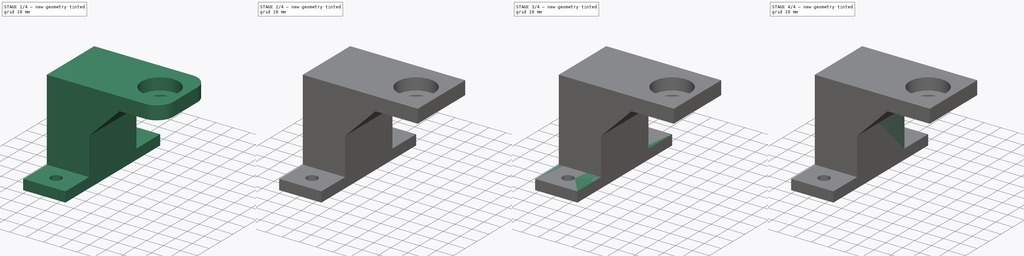
[diagram: build sequence overview — one tinted view per stage of 4, left to right]
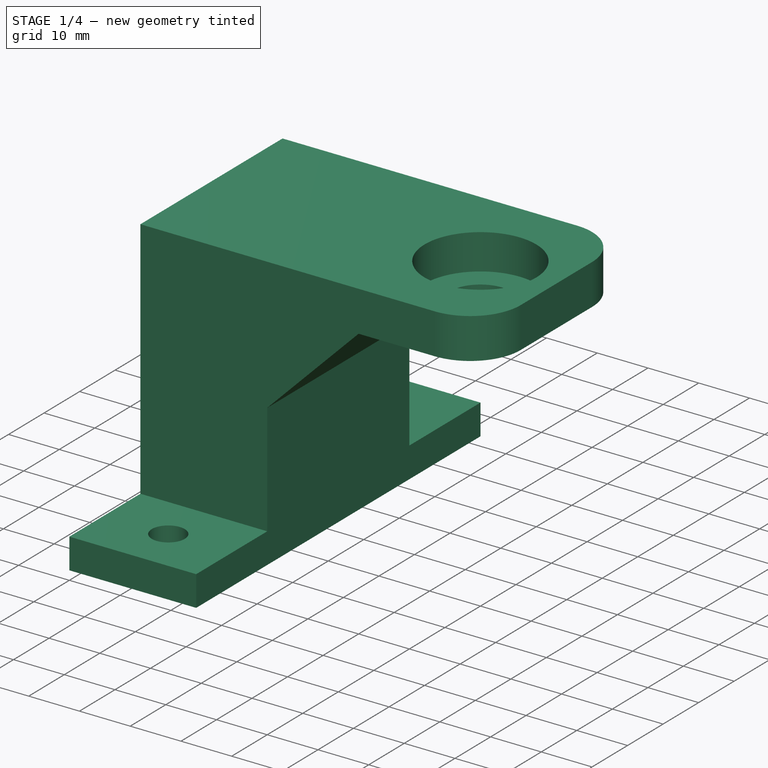
[diagram: stage 1 of 4 — iso view after this stage's code; geometry added in this stage tinted green]
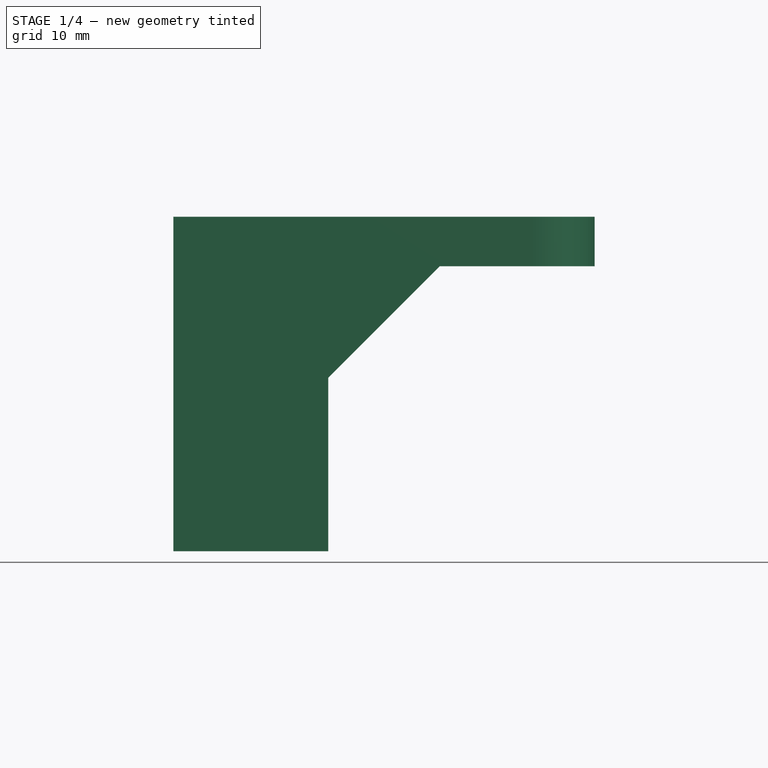
[diagram: stage 1 of 4 — front view after this stage's code; geometry added in this stage tinted green]
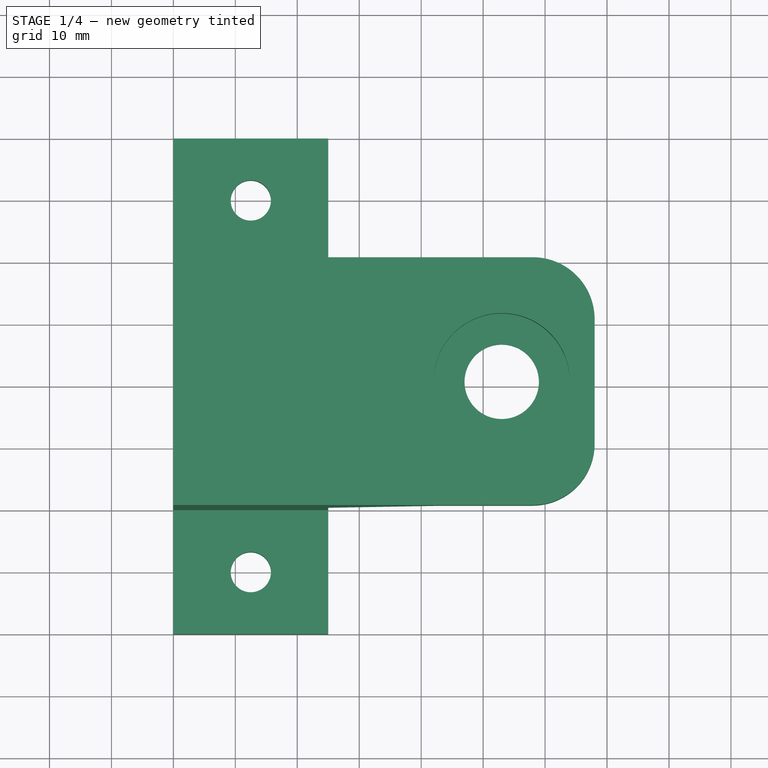
[diagram: stage 1 of 4 — top view after this stage's code; geometry added in this stage tinted green]
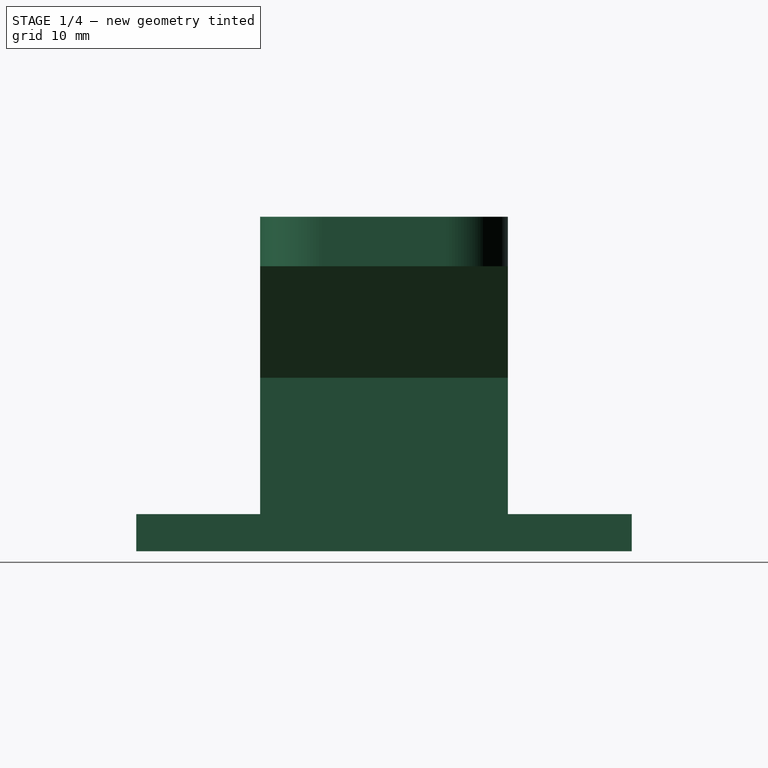
[diagram: stage 1 of 4 — right view after this stage's code; geometry added in this stage tinted green]
FCSTD DOCUMENT  (FreeCAD 0.14R3702 (Git))
Label: bottom_bearing_mount_lr
License: CC-BY 3.0
LicenseURL: http://creativecommons.org/licenses/by/3.0/
objects: Sketcher::SketchObject×4, PartDesign::Pocket×4, Part::Box×3, PartDesign::Fillet×2, Part::MultiFuse×1, Part::Feature×1, PartDesign::Chamfer×1
note: 20 computed .brp shape members not serialized (recipe doc carries the construction recipe); baked Part::Feature solids carry a one-line shape summary decoded from their .brp

FEATURE [Part::Feature] Fusion001
  shape: bbox 68 x 80 x 54 mm, 23 faces (baked)
FEATURE [PartDesign::Chamfer] Chamfer
  Base = -> Fusion001 [Edge11]
  Size = 18
FEATURE [PartDesign::Fillet] Fillet
  Base = -> Chamfer [Edge14]
  Radius = 10
FEATURE [PartDesign::Fillet] Fillet001
  Base = -> Fillet [Edge9]
  Radius = 10
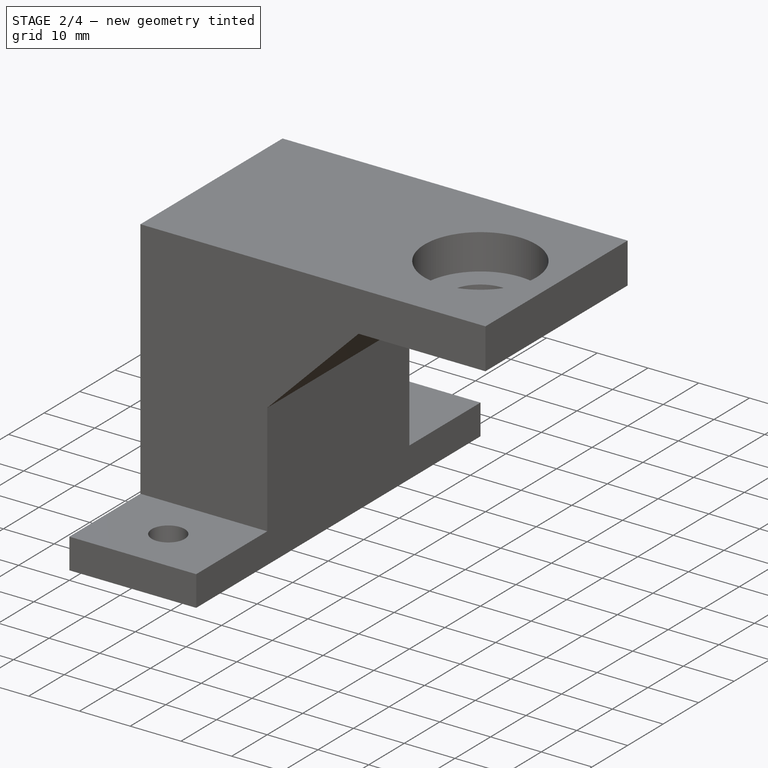
[diagram: stage 2 of 4 — iso view after this stage's code; geometry added in this stage tinted green]
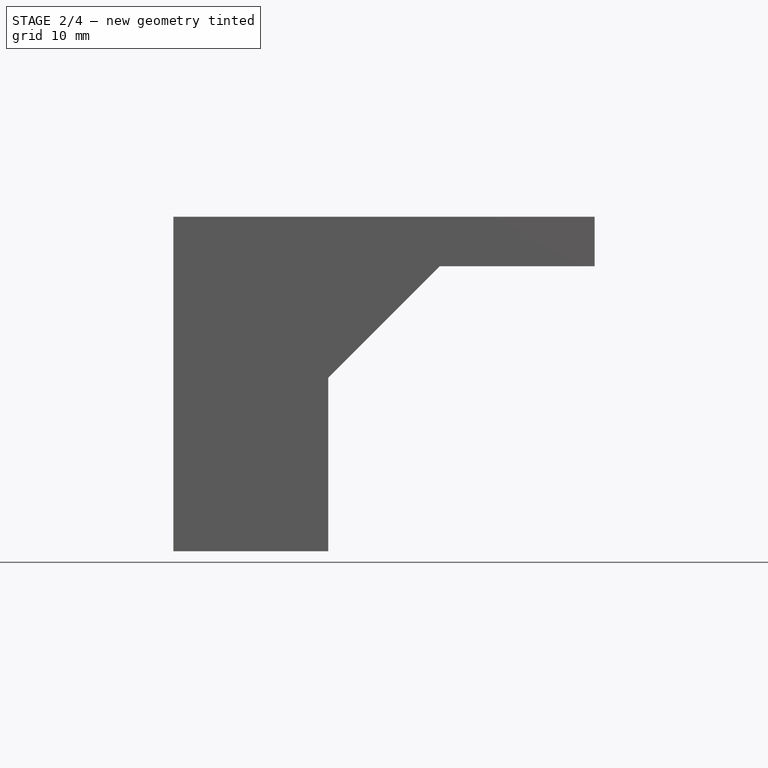
[diagram: stage 2 of 4 — front view after this stage's code; geometry added in this stage tinted green]
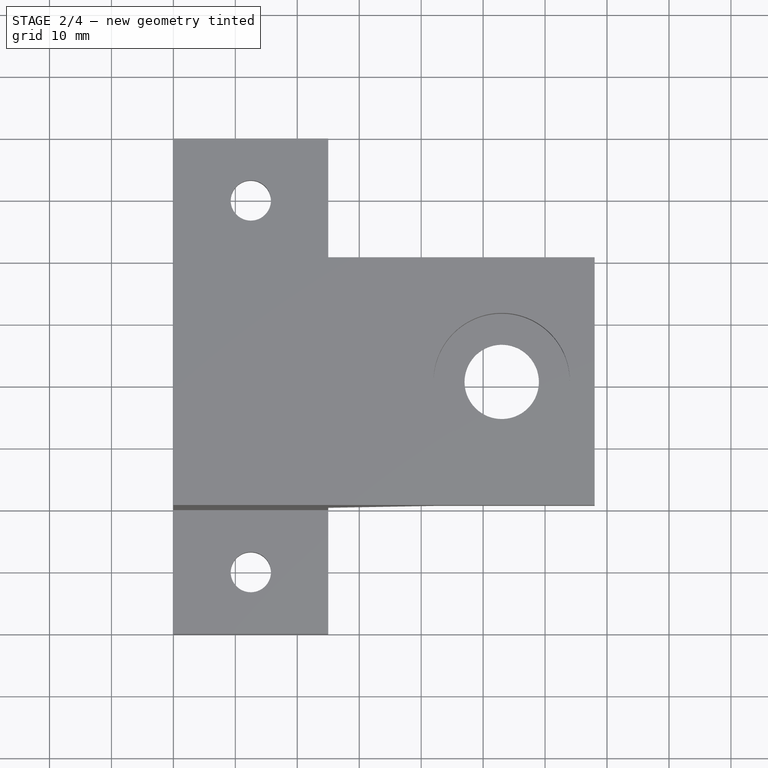
[diagram: stage 2 of 4 — top view after this stage's code; geometry added in this stage tinted green]
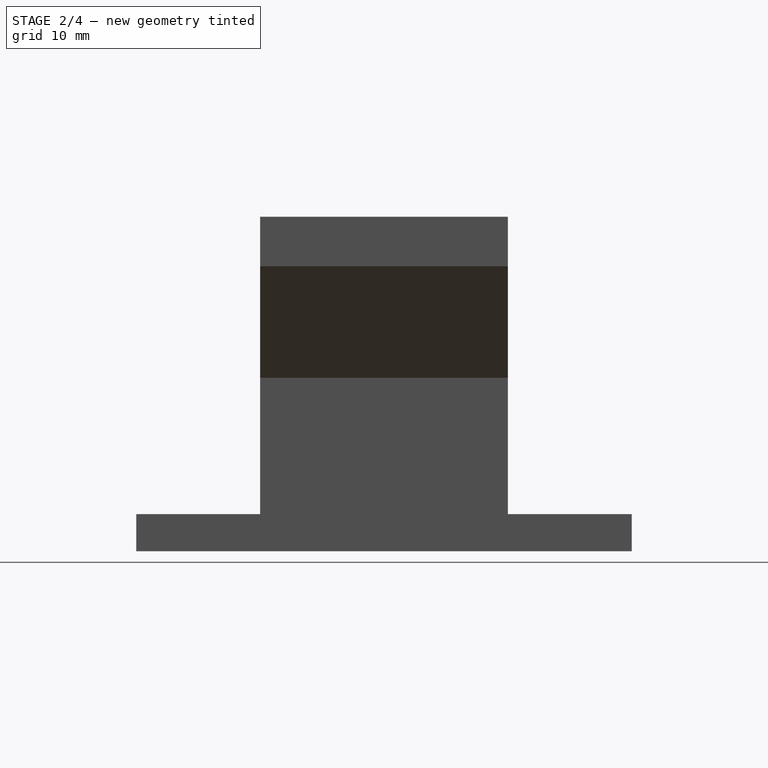
[diagram: stage 2 of 4 — right view after this stage's code; geometry added in this stage tinted green]
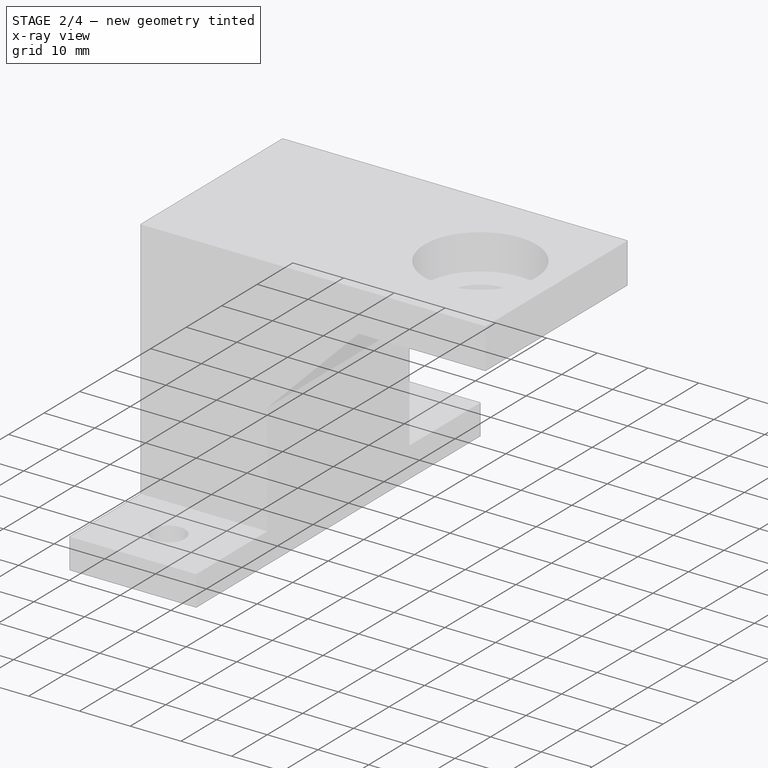
[diagram: stage 2 of 4 — x-ray composite at the iso view; earlier geometry ghosted, this stage's added geometry solid]
FEATURE [Part::Box] Box002  label="Cube002"
  Height = 8
  Length = 68
  Placement = pos=(0,20,46) rot=(0,0,1;0rad)
  Width = 40
FEATURE [Sketcher::SketchObject] Sketch002
  Placement = pos=(0,20,54) rot=(0,0,1;0rad)
  Support = -> Box002 [Face6]
  sketch-geometry (1):
    g0: Circle CenterX=53 CenterY=20 CenterZ=0 NormalX=0 NormalY=0 NormalZ=1 Radius=11
  constraints (3):
    c: DistanceX(g-1,g0) = 53
    c: DistanceY(g-1,g0) = 20
    c: Radius(g0) = 11
FEATURE [PartDesign::Pocket] Pocket002  label="bearing_hole"
  Length = 7
  Placement = pos=(0,20,46) rot=(0,0,1;0rad)
  Sketch = -> Sketch002
  Type = 0
FEATURE [Sketcher::SketchObject] Sketch003
  Placement = pos=(0,20,46) rot=(1,0,0;3.14159rad)
  Support = -> Pocket002 [Face5]
  sketch-geometry (1):
    g0: Circle CenterX=53 CenterY=-20 CenterZ=0 NormalX=0 NormalY=0 NormalZ=1 Radius=6
  constraints (3):
    c: DistanceX(g-1,g0) = 53
    c: DistanceY(g-1,g0) = -20
    c: Radius(g0) = 6
FEATURE [PartDesign::Pocket] Pocket003  label="thro_whole_pocket"
  Length = 5
  Placement = pos=(0,20,46) rot=(0,0,1;0rad)
  Sketch = -> Sketch003
  Type = 1
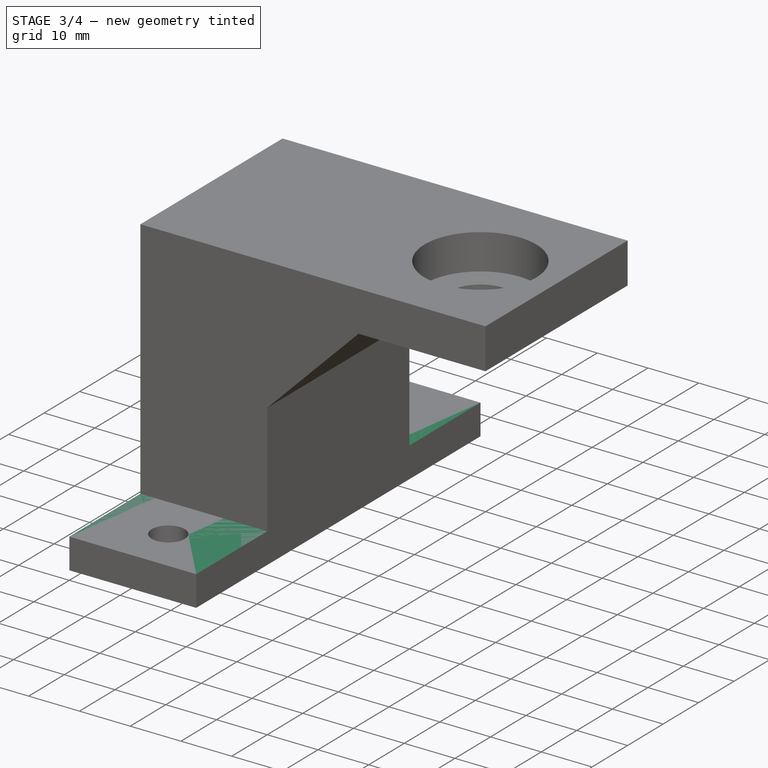
[diagram: stage 3 of 4 — iso view after this stage's code; geometry added in this stage tinted green]
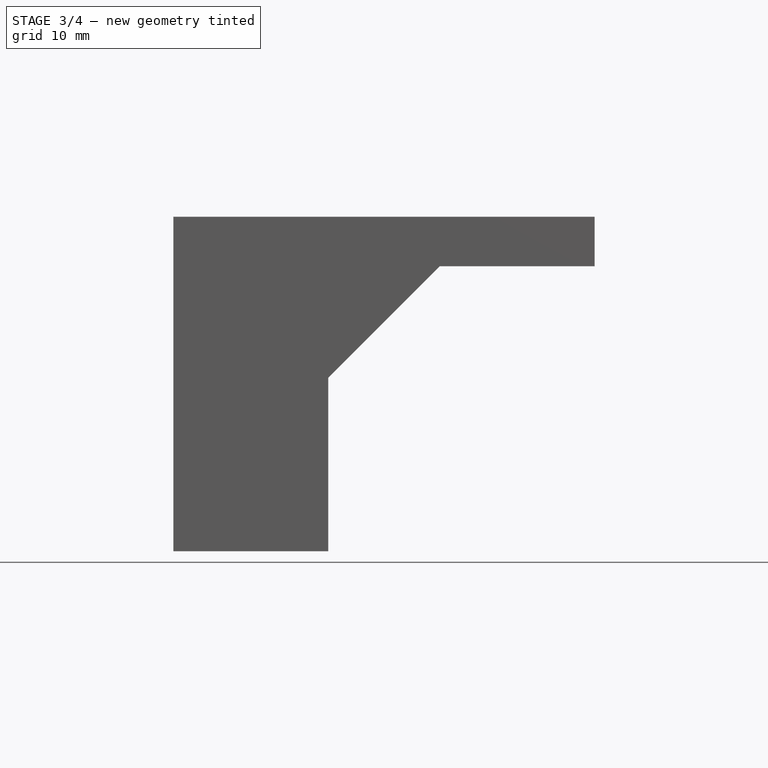
[diagram: stage 3 of 4 — front view after this stage's code; geometry added in this stage tinted green]
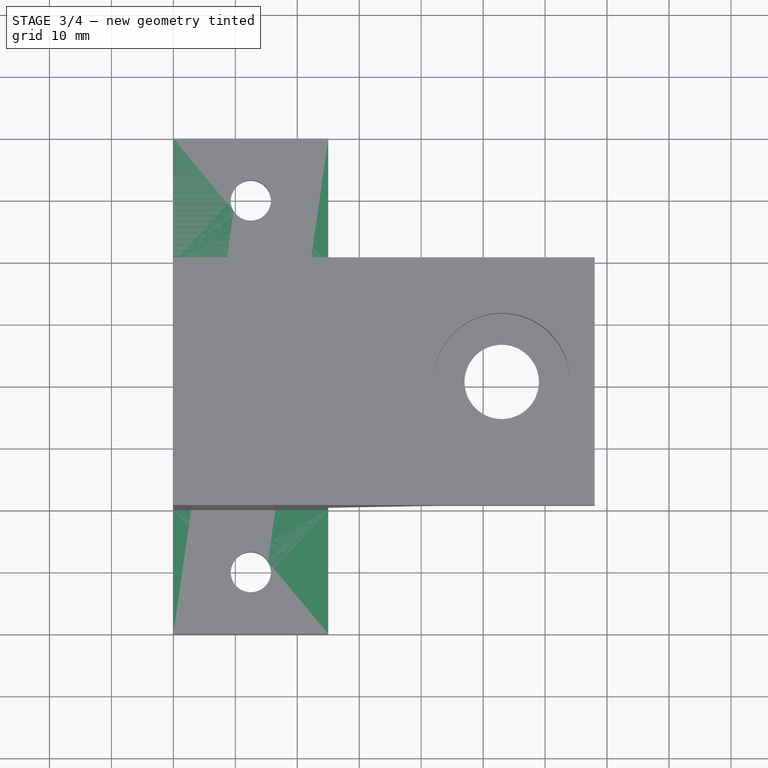
[diagram: stage 3 of 4 — top view after this stage's code; geometry added in this stage tinted green]
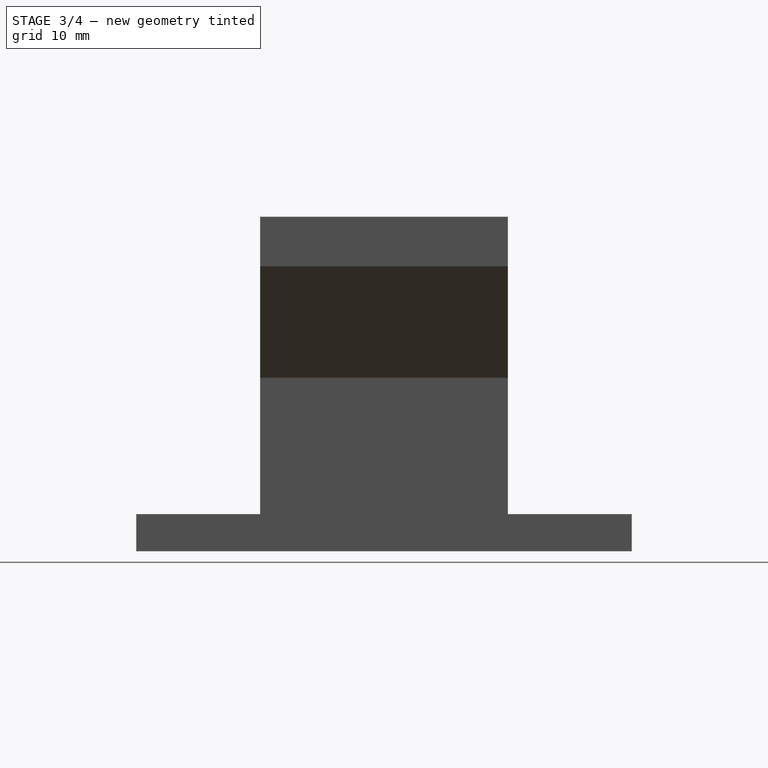
[diagram: stage 3 of 4 — right view after this stage's code; geometry added in this stage tinted green]
FEATURE [Part::Box] Box  label="Cube"
  Height = 6
  Length = 25
  Width = 80
FEATURE [Sketcher::SketchObject] Sketch001
  Placement = pos=(0,0,6) rot=(0,0,1;0rad)
  Support = -> Box [Face6]
  sketch-geometry (2):
    g0: Circle CenterX=12.5 CenterY=70 CenterZ=0 NormalX=0 NormalY=0 NormalZ=1 Radius=3.25
    g1: Circle CenterX=12.5 CenterY=10 CenterZ=0 NormalX=0 NormalY=0 NormalZ=1 Radius=3.25
  constraints (6):
    c: DistanceX(g-1,g1) = 12.5
    c: Radius(g1) = 3.25
    c: Equal(g1,g0)
    c: DistanceX(g-1,g0) = 12.5
    c: DistanceY(g-1,g1) = 10
    c: DistanceY(g-1,g0) = 70
FEATURE [PartDesign::Pocket] Pocket001  label="base_plate"
  Length = 5
  Sketch = -> Sketch001
  Type = 1
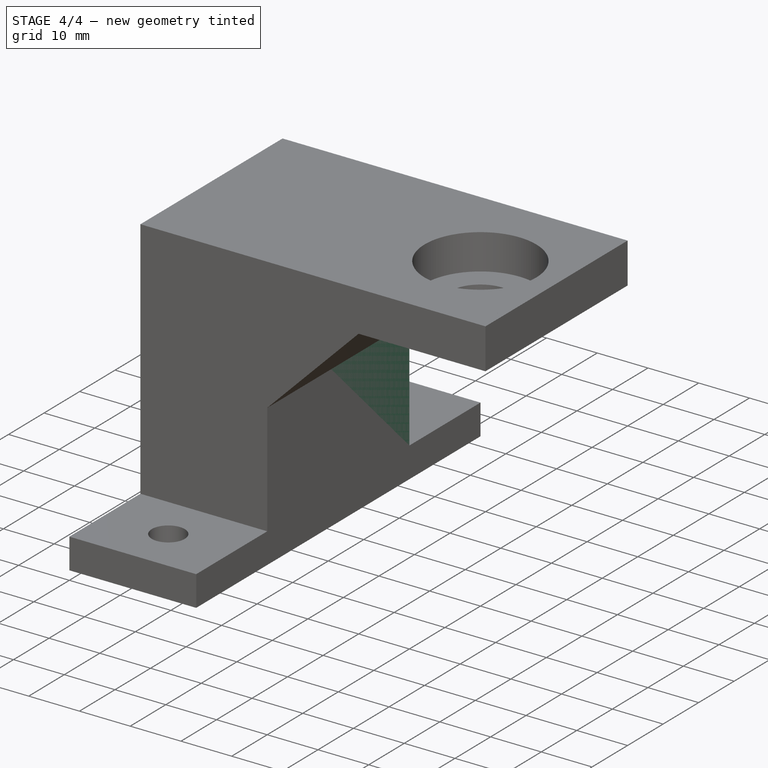
[diagram: stage 4 of 4 — iso view after this stage's code; geometry added in this stage tinted green]
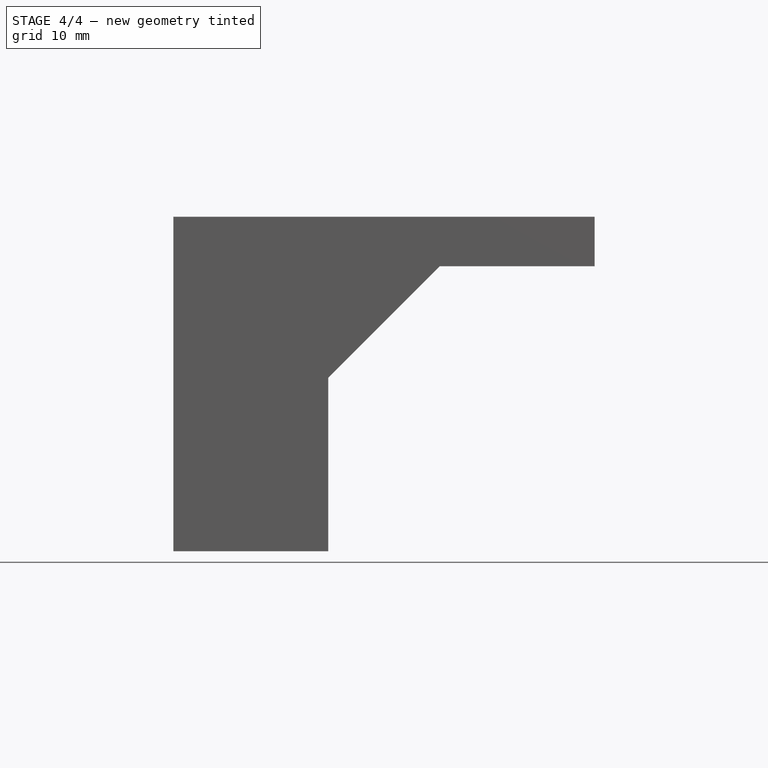
[diagram: stage 4 of 4 — front view after this stage's code; geometry added in this stage tinted green]
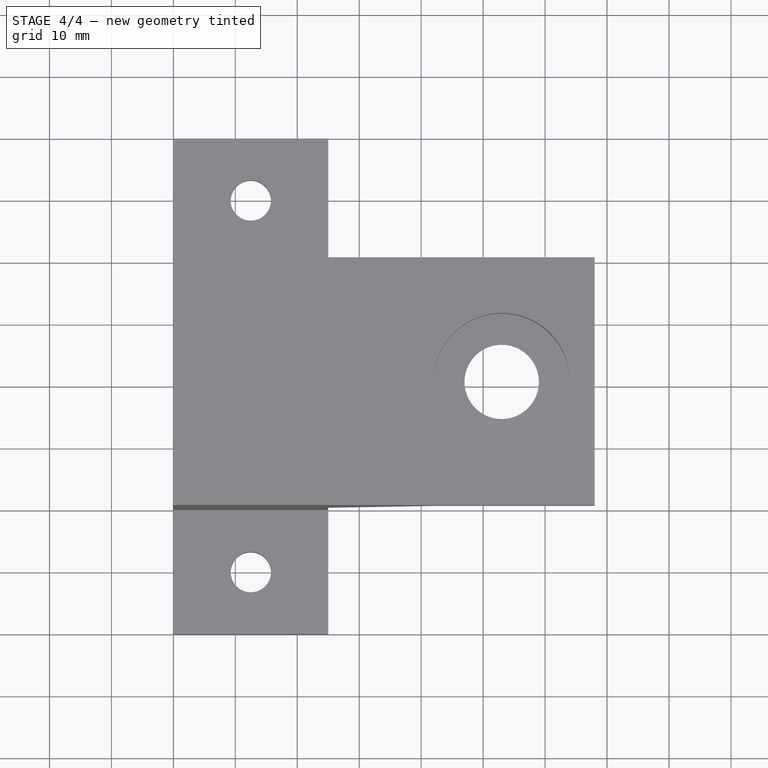
[diagram: stage 4 of 4 — top view after this stage's code; geometry added in this stage tinted green]
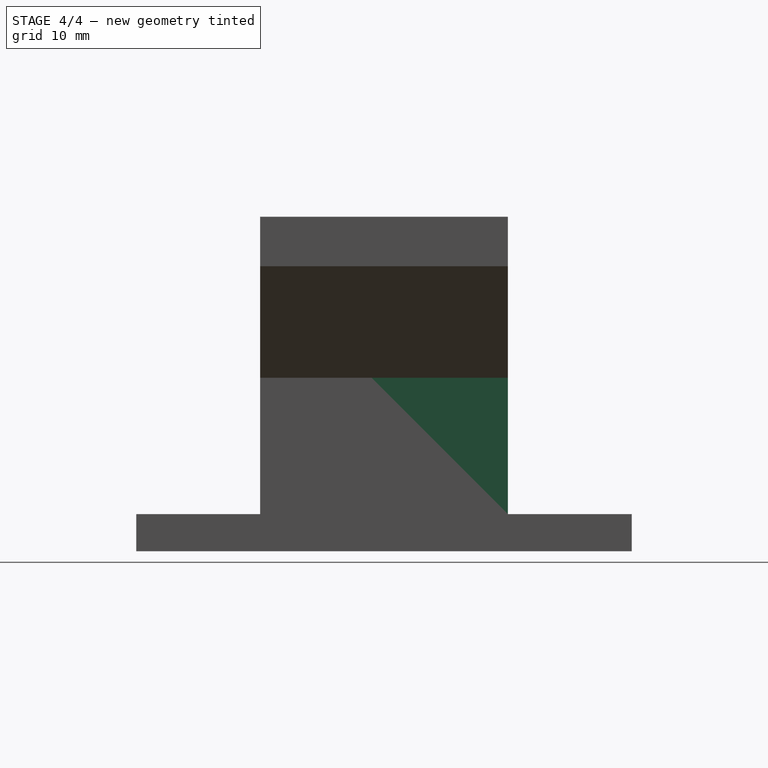
[diagram: stage 4 of 4 — right view after this stage's code; geometry added in this stage tinted green]
FEATURE [Part::Box] Box001  label="Cube001"
  Height = 40
  Length = 25
  Placement = pos=(0,20,6) rot=(0,0,1;0rad)
  Width = 40
FEATURE [Sketcher::SketchObject] Sketch
  Placement = pos=(0,20,46) rot=(0,0,1;0rad)
  Support = -> Box001 [Face6]
  sketch-geometry (4):
    g0: LineSegment StartX=5 StartY=35 StartZ=0 EndX=20 EndY=35 EndZ=0
    g1: LineSegment StartX=20 StartY=35 StartZ=0 EndX=20 EndY=5 EndZ=0
    g2: LineSegment StartX=20 StartY=5 StartZ=0 EndX=5 EndY=5 EndZ=0
    g3: LineSegment StartX=5 StartY=5 StartZ=0 EndX=5 EndY=35 EndZ=0
  constraints (12):
    c: Coincident(g0,g1)
    c: Coincident(g1,g2)
    c: Coincident(g2,g3)
    c: Coincident(g3,g0)
    c: Horizontal(g0)
    c: Horizontal(g2)
    c: Vertical(g1)
    c: Vertical(g3)
    c: DistanceY(g-1,g2) = 5
    c: DistanceX(g-1,g2) = 5
    c: Distance(g3) = 30
    c: Distance(g2) = 15
FEATURE [PartDesign::Pocket] Pocket  label="riser"
  Length = 0
  Placement = pos=(0,20,6) rot=(0,0,1;0rad)
  Sketch = -> Sketch
  Type = 2
FEATURE [Part::MultiFuse] Fusion
  Shapes = -> [Pocket,Pocket001,Pocket003]
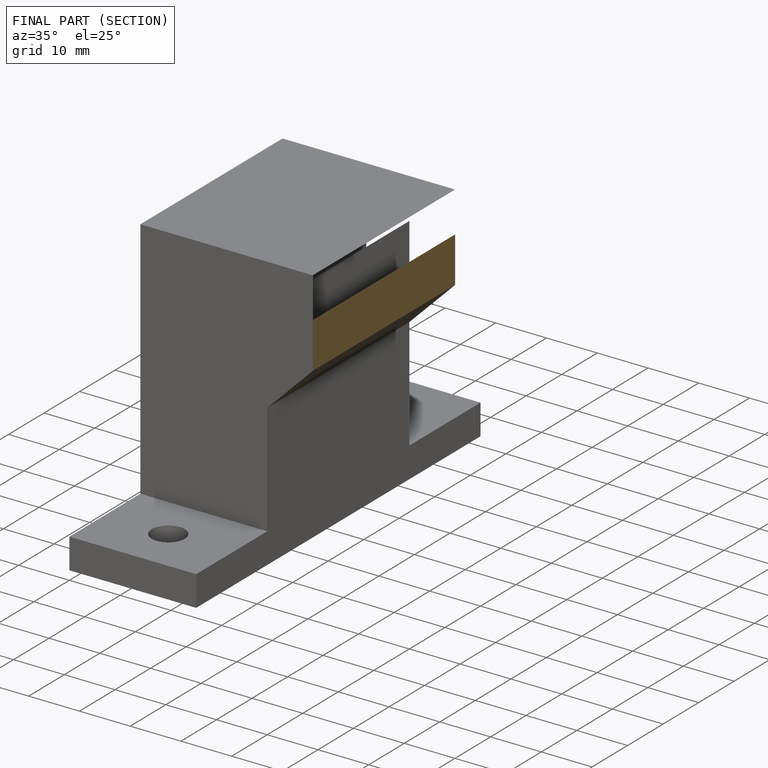
[diagram: finished part — half-section view (interior)]
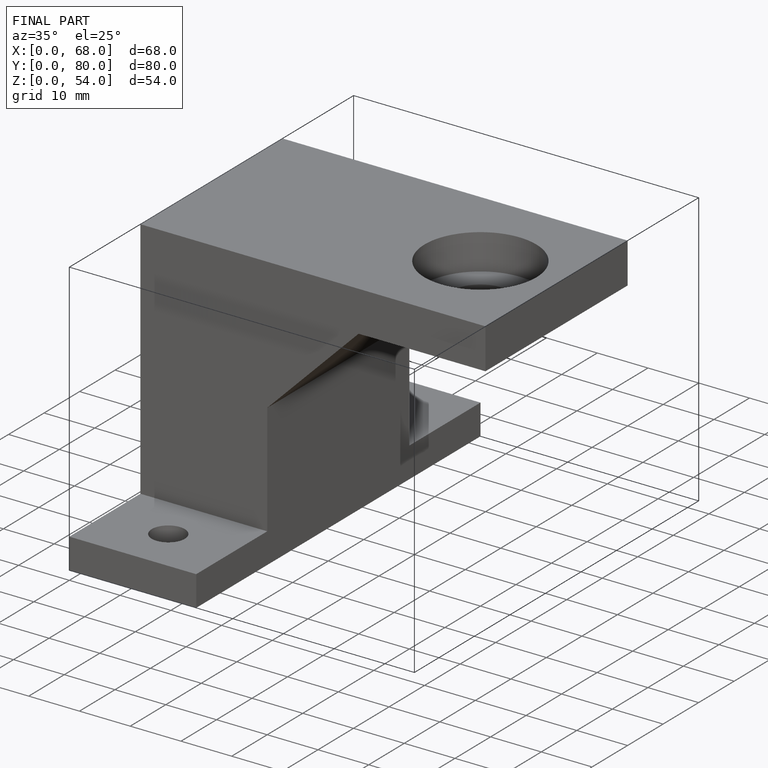
[diagram: finished part — iso view with bounding-box wireframe]
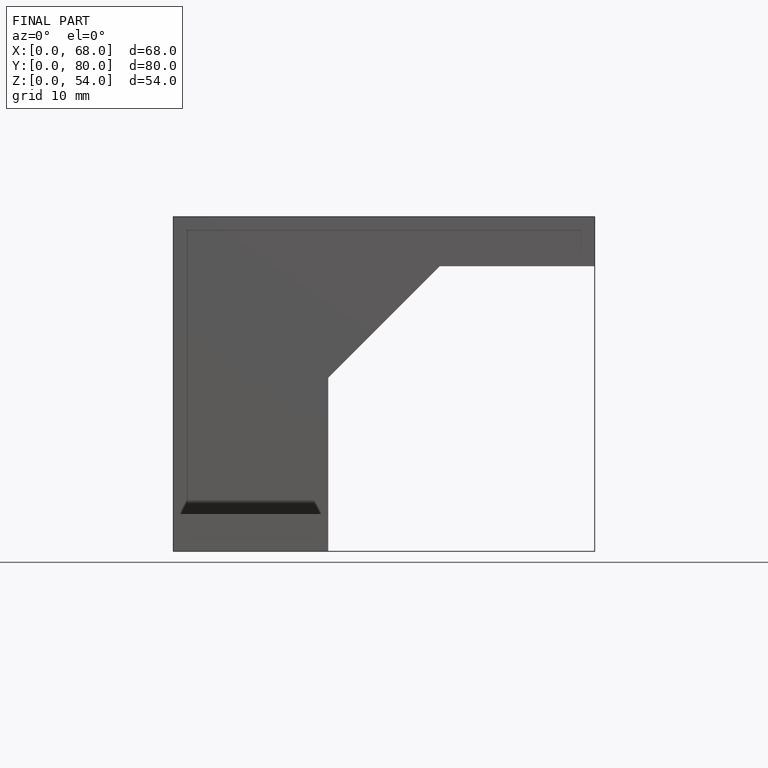
[diagram: finished part — front view with bounding-box wireframe]
